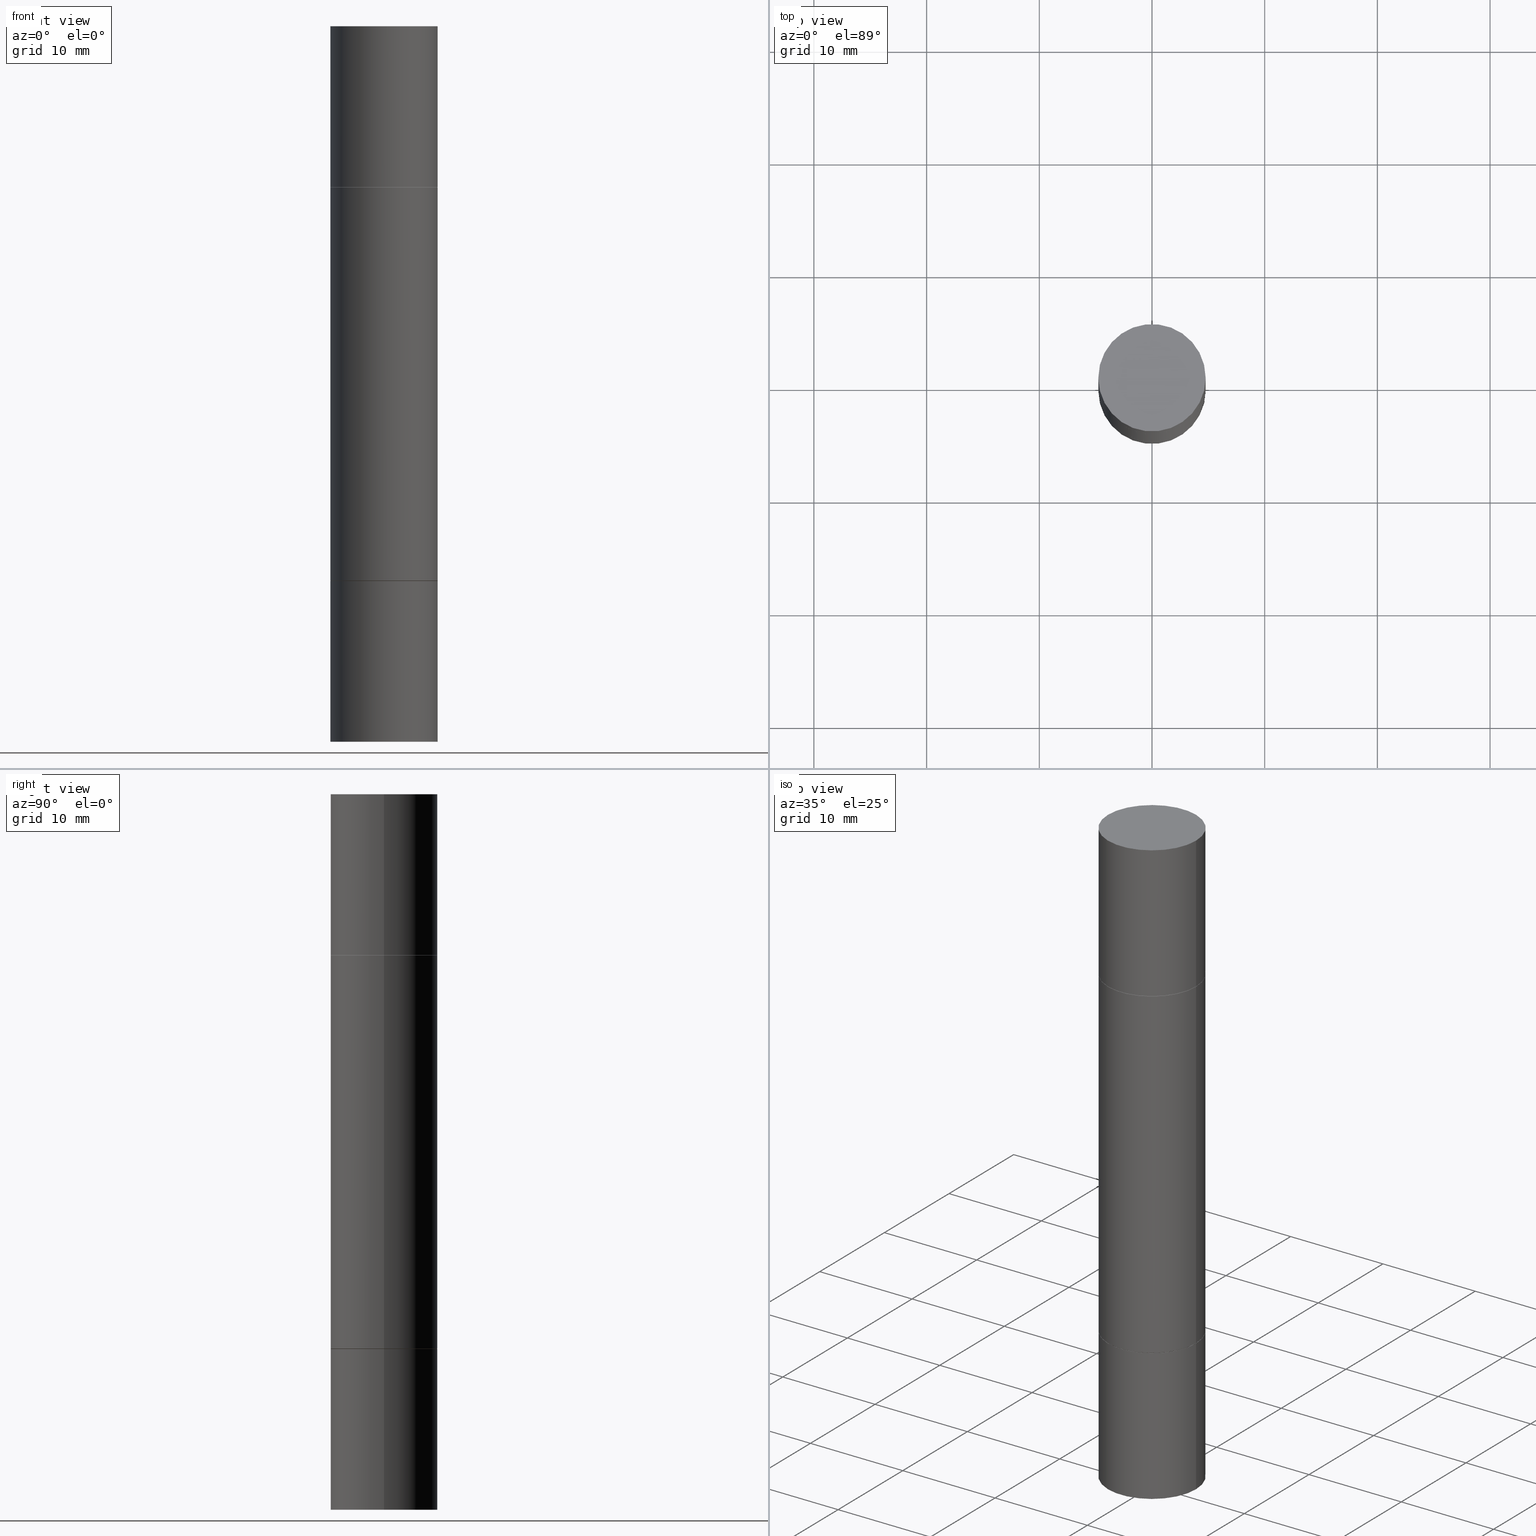
[diagram: canonical four-view strip — front | top / right | iso, engineering-drawing reading convention]
A machine part, canonical four-view strip (front | top / right | iso — engineering-drawing reading convention). The complete STEP part file that produces these views, byte-faithful:
ISO-10303-21;
HEADER;
FILE_DESCRIPTION (( 'STEP AP203' ),
    '1' );
FILE_NAME ('31475.STEP',
    '2024-03-04T15:42:14',
    ( '' ),
    ( '' ),
    'SwSTEP 2.0',
    'SolidWorks 2023',
    '' );
FILE_SCHEMA (( 'CONFIG_CONTROL_DESIGN' ));
ENDSEC;

DATA;
#1 = DIRECTION ( 'NONE',  ( 2.445468806185136597E-29, 3.492890411551752677E-15, 1.000000000000000000 ) ) ;
#2 = ORIENTED_EDGE ( 'NONE', *, *, #459, .T. ) ;
#3 = CC_DESIGN_PERSON_AND_ORGANIZATION_ASSIGNMENT ( #537, #60, ( #123 ) ) ;
#4 = ORIENTED_EDGE ( 'NONE', *, *, #538, .T. ) ;
#5 = CARTESIAN_POINT ( 'NONE',  ( 0.000000000000000000, 0.000000000000000000, 0.000000000000000000 ) ) ;
#6 = PERSON_AND_ORGANIZATION ( #348, #429 ) ;
#7 = CLOSED_SHELL ( 'NONE', ( #55, #275, #638, #465, #609, #74 ) ) ;
#8 = CIRCLE ( 'NONE', #151, 0.1875000000000000278 ) ;
#9 = ORIENTED_EDGE ( 'NONE', *, *, #237, .T. ) ;
#10 = LINE ( 'NONE', #581, #45 ) ;
#11 = DIRECTION ( 'NONE',  ( 1.000000000000000000, -6.982962677686270655E-15, 0.000000000000000000 ) ) ;
#12 = CC_DESIGN_DATE_AND_TIME_ASSIGNMENT ( #133, #611, ( #396 ) ) ;
#13 = DIRECTION ( 'NONE',  ( -2.445468806185136597E-29, 3.491481338843145583E-15, 1.000000000000000000 ) ) ;
#14 = CARTESIAN_POINT ( 'NONE',  ( 4.739318546386794397E-29, -1.961243070406324635E-15, -0.5619999999999996110 ) ) ;
#15 = DIRECTION ( 'NONE',  ( 1.000000000000000000, -6.982962677686266711E-15, 0.000000000000000000 ) ) ;
#16 = AXIS2_PLACEMENT_3D ( 'NONE', #591, #535, #120 ) ;
#17 = DIRECTION ( 'NONE',  ( -2.445468806185136597E-29, -3.492890411551752677E-15, -1.000000000000000000 ) ) ;
#18 = CIRCLE ( 'NONE', #103, 0.1875000000000000278 ) ;
#19 = DIRECTION ( 'NONE',  ( -2.438088387897959769E-29, -3.492890411551753071E-15, -1.000000000000000000 ) ) ;
#20 = CALENDAR_DATE ( 2024, 4, 3 ) ;
#21 = LINE ( 'NONE', #281, #240 ) ;
#22 = DIRECTION ( 'NONE',  ( -1.000000000000000000, 6.982962677686265922E-15, -4.876176775795935793E-29 ) ) ;
#23 = SHAPE_DEFINITION_REPRESENTATION ( #565, #579 ) ;
#24 = CARTESIAN_POINT ( 'NONE',  ( 4.739318546386794397E-29, -1.961243070406324635E-15, -0.5619999999999996110 ) ) ;
#25 = DIRECTION ( 'NONE',  ( 1.000000000000000000, -6.982962677686265922E-15, 0.000000000000000000 ) ) ;
#26 = AXIS2_PLACEMENT_3D ( 'NONE', #385, #32, #340 ) ;
#27 = LOCAL_TIME ( 10, 42, 14.00000000000000000, #422 ) ;
#28 = DIRECTION ( 'NONE',  ( 1.000000000000000000, -6.982962677686266711E-15, 0.000000000000000000 ) ) ;
#29 = CARTESIAN_POINT ( 'NONE',  ( 4.739318546386794397E-29, -6.766490834678016045E-15, -1.937999999999999945 ) ) ;
#30 = DIRECTION ( 'NONE',  ( -2.445468806185136597E-29, -3.492890411551752677E-15, -1.000000000000000000 ) ) ;
#31 = ORIENTED_EDGE ( 'NONE', *, *, #219, .T. ) ;
#32 = DIRECTION ( 'NONE',  ( -2.445468806185136597E-29, 3.491481338843145583E-15, 1.000000000000000000 ) ) ;
#33 = CC_DESIGN_PERSON_AND_ORGANIZATION_ASSIGNMENT ( #542, #69, ( #552 ) ) ;
#34 = DIRECTION ( 'NONE',  ( 1.000000000000000000, -6.982962677686269077E-15, 0.000000000000000000 ) ) ;
#35 = AXIS2_PLACEMENT_3D ( 'NONE', #341, #607, #246 ) ;
#36 = DIRECTION ( 'NONE',  ( -2.445468806185136597E-29, 3.491481338843145583E-15, 1.000000000000000000 ) ) ;
#37 = VERTEX_POINT ( 'NONE', #568 ) ;
#38 = EDGE_LOOP ( 'NONE', ( #214, #156, #374, #631 ) ) ;
#39 = EDGE_CURVE ( 'NONE', #613, #195, #67, .T. ) ;
#40 = CARTESIAN_POINT ( 'NONE',  ( 6.113672015462842613E-29, 1.761340885760521790E-18, 5.463695987328526437E-16 ) ) ;
#41 = LINE ( 'NONE', #367, #250 ) ;
#42 = ORIENTED_EDGE ( 'NONE', *, *, #573, .T. ) ;
#43 = AXIS2_PLACEMENT_3D ( 'NONE', #185, #487, #602 ) ;
#44 = LINE ( 'NONE', #402, #575 ) ;
#45 = VECTOR ( 'NONE', #119, 39.37007874015748143 ) ;
#46 = AXIS2_PLACEMENT_3D ( 'NONE', #471, #635, #317 ) ;
#47 = ORIENTED_EDGE ( 'NONE', *, *, #647, .T. ) ;
#48 = EDGE_LOOP ( 'NONE', ( #168, #175, #499, #336 ) ) ;
#49 = CYLINDRICAL_SURFACE ( 'NONE', #530, 0.1875000000000000278 ) ;
#50 = ADVANCED_FACE ( 'NONE', ( #192 ), #294, .T. ) ;
#51 = DIRECTION ( 'NONE',  ( 0.000000000000000000, 1.000000000000000000, -3.492185875197449524E-15 ) ) ;
#52 = DIRECTION ( 'NONE',  ( 1.000000000000000000, -6.982962677686266711E-15, 0.000000000000000000 ) ) ;
#53 = AXIS2_PLACEMENT_3D ( 'NONE', #622, #559, #88 ) ;
#54 = DIRECTION ( 'NONE',  ( 2.445468806185136597E-29, 3.492890411551752677E-15, 1.000000000000000000 ) ) ;
#55 = ADVANCED_FACE ( 'NONE', ( #184 ), #599, .T. ) ;
#56 = CARTESIAN_POINT ( 'NONE',  ( 0.000000000000000000, -8.730464687993621641E-15, -2.499999999999999556 ) ) ;
#57 = ORIENTED_EDGE ( 'NONE', *, *, #379, .F. ) ;
#58 = ADVANCED_FACE ( 'NONE', ( #386 ), #548, .F. ) ;
#59 = DIRECTION ( 'NONE',  ( -0.7071067811865353603, 2.381258160591140710E-15, -0.7071067811865595631 ) ) ;
#60 = PERSON_AND_ORGANIZATION_ROLE ( 'creator' ) ;
#61 = ORIENTED_EDGE ( 'NONE', *, *, #182, .F. ) ;
#62 = CARTESIAN_POINT ( 'NONE',  ( 4.736873077580609355E-29, -1.964735960817877172E-15, -0.5629999999999997229 ) ) ;
#63 = FACE_OUTER_BOUND ( 'NONE', #616, .T. ) ;
#64 = DATE_TIME_ROLE ( 'creation_date' ) ;
#65 = DIRECTION ( 'NONE',  ( 1.000000000000000000, -6.982962677686269077E-15, 0.000000000000000000 ) ) ;
#66 = EDGE_CURVE ( 'NONE', #126, #522, #407, .T. ) ;
#67 = CIRCLE ( 'NONE', #53, 0.1864999999999999714 ) ;
#68 = VECTOR ( 'NONE', #612, 39.37007874015748854 ) ;
#69 = PERSON_AND_ORGANIZATION_ROLE ( 'creator' ) ;
#70 = CARTESIAN_POINT ( 'NONE',  ( 6.113672015462842613E-29, 1.761340885760521790E-18, 5.463695987328526437E-16 ) ) ;
#71 = EDGE_LOOP ( 'NONE', ( #9, #457 ) ) ;
#72 = ADVANCED_FACE ( 'NONE', ( #243 ), #136, .T. ) ;
#73 = LINE ( 'NONE', #286, #670 ) ;
#74 = ADVANCED_FACE ( 'NONE', ( #556 ), #290, .T. ) ;
#75 = CARTESIAN_POINT ( 'NONE',  ( 4.736873077580609355E-29, -1.964735960817877172E-15, -0.5629999999999997229 ) ) ;
#76 = CARTESIAN_POINT ( 'NONE',  ( 0.1875000000000000278, -3.270548572472500038E-15, -0.5619999999999996110 ) ) ;
#77 = CLOSED_SHELL ( 'NONE', ( #157, #112, #641, #101 ) ) ;
#78 = CARTESIAN_POINT ( 'NONE',  ( 0.000000000000000000, -8.730464687993621641E-15, -2.499999999999999556 ) ) ;
#79 = AXIS2_PLACEMENT_3D ( 'NONE', #562, #163, #359 ) ;
#80 = ADVANCED_FACE ( 'NONE', ( #63 ), #469, .T. ) ;
#81 = FACE_OUTER_BOUND ( 'NONE', #160, .T. ) ;
#82 = DIRECTION ( 'NONE',  ( 1.000000000000000000, -6.982962677686266711E-15, 0.000000000000000000 ) ) ;
#83 = ADVANCED_FACE ( 'NONE', ( #273 ), #476, .F. ) ;
#84 = ORIENTED_EDGE ( 'NONE', *, *, #66, .F. ) ;
#85 = PERSON_AND_ORGANIZATION ( #348, #429 ) ;
#86 = CARTESIAN_POINT ( 'NONE',  ( -0.1875000000000000278, 3.066025098218802702E-16, -0.5619999999999996110 ) ) ;
#87 = EDGE_CURVE ( 'NONE', #225, #400, #593, .T. ) ;
#88 = DIRECTION ( 'NONE',  ( 1.000000000000000000, -6.982962677686269077E-15, 0.000000000000000000 ) ) ;
#89 = EDGE_LOOP ( 'NONE', ( #84, #324, #526, #61 ) ) ;
#90 = DIRECTION ( 'NONE',  ( -2.445468806185136597E-29, -3.492890411551752677E-15, -1.000000000000000000 ) ) ;
#91 = EDGE_CURVE ( 'NONE', #473, #425, #394, .T. ) ;
#92 = DIRECTION ( 'NONE',  ( -1.000000000000000000, 6.982962677686265922E-15, -9.839502134516470631E-33 ) ) ;
#93 = AXIS2_PLACEMENT_3D ( 'NONE', #78, #30, #665 ) ;
#94 = AXIS2_PLACEMENT_3D ( 'NONE', #137, #338, #546 ) ;
#95 = FACE_OUTER_BOUND ( 'NONE', #171, .T. ) ;
#96 = ORIENTED_EDGE ( 'NONE', *, *, #650, .F. ) ;
#97 = DIRECTION ( 'NONE',  ( -2.445468806185136877E-29, -3.492890411551753071E-15, -1.000000000000000000 ) ) ;
#98 = ORIENTED_EDGE ( 'NONE', *, *, #459, .F. ) ;
#99 = PLANE ( 'NONE',  #223 ) ;
#100 = ORIENTED_EDGE ( 'NONE', *, *, #431, .F. ) ;
#101 = ADVANCED_FACE ( 'NONE', ( #81 ), #292, .T. ) ;
#102 = CARTESIAN_POINT ( 'NONE',  ( 0.1875000000000000278, -3.274041462884052574E-15, -0.5629999999999997229 ) ) ;
#103 = AXIS2_PLACEMENT_3D ( 'NONE', #40, #1, #628 ) ;
#104 = APPROVAL_PERSON_ORGANIZATION ( #589, #264, #642 ) ;
#105 = ORIENTED_EDGE ( 'NONE', *, *, #305, .T. ) ;
#106 = CARTESIAN_POINT ( 'NONE',  ( 0.000000000000000000, -8.730464687993621641E-15, -2.499999999999999556 ) ) ;
#107 = DIRECTION ( 'NONE',  ( -2.445468806185136877E-29, -3.492890411551753071E-15, -1.000000000000000000 ) ) ;
#108 = ORIENTED_EDGE ( 'NONE', *, *, #437, .F. ) ;
#109 = DIRECTION ( 'NONE',  ( -2.445468806185136597E-29, -3.492890411551752677E-15, -1.000000000000000000 ) ) ;
#110 = LINE ( 'NONE', #276, #150 ) ;
#111 = CYLINDRICAL_SURFACE ( 'NONE', #574, 0.1874999999999999167 ) ;
#112 = ADVANCED_FACE ( 'NONE', ( #307 ), #504, .T. ) ;
#113 = VERTEX_POINT ( 'NONE', #303 ) ;
#114 = CIRCLE ( 'NONE', #288, 0.1875000000000000278 ) ;
#115 = CARTESIAN_POINT ( 'NONE',  ( -0.1864999999999999714, -6.800763900288241472E-16, -0.5619999999999996110 ) ) ;
#116 = CIRCLE ( 'NONE', #452, 0.1875000000000000278 ) ;
#117 = DATE_AND_TIME ( #124, #27 ) ;
#118 = ORIENTED_EDGE ( 'NONE', *, *, #297, .F. ) ;
#119 = DIRECTION ( 'NONE',  ( -2.445468806185136877E-29, -3.492890411551753071E-15, -1.000000000000000000 ) ) ;
#120 = DIRECTION ( 'NONE',  ( 1.000000000000000000, -6.982962677686269077E-15, 0.000000000000000000 ) ) ;
#121 = EDGE_LOOP ( 'NONE', ( #147, #502, #410, #399 ) ) ;
#122 = DIRECTION ( 'NONE',  ( -2.445468806185136877E-29, 3.491481338843145188E-15, 1.000000000000000000 ) ) ;
#123 = PRODUCT_DEFINITION ( 'UNKNOWN', '', #552, #238 ) ;
#124 = CALENDAR_DATE ( 2024, 4, 3 ) ;
#125 = CYLINDRICAL_SURFACE ( 'NONE', #130, 0.1875000000000000278 ) ;
#126 = VERTEX_POINT ( 'NONE', #405 ) ;
#127 = DATE_AND_TIME ( #220, #482 ) ;
#128 = DIRECTION ( 'NONE',  ( 1.000000000000000000, -6.982962677686266711E-15, 0.000000000000000000 ) ) ;
#129 = AXIS2_PLACEMENT_3D ( 'NONE', #497, #295, #543 ) ;
#130 = AXIS2_PLACEMENT_3D ( 'NONE', #657, #483, #177 ) ;
#131 = APPROVAL_PERSON_ORGANIZATION ( #332, #139, #481 ) ;
#132 = ORIENTED_EDGE ( 'NONE', *, *, #514, .F. ) ;
#133 = DATE_AND_TIME ( #500, #509 ) ;
#134 = VERTEX_POINT ( 'NONE', #421 ) ;
#135 = ADVANCED_FACE ( 'NONE', ( #582 ), #111, .T. ) ;
#136 = CYLINDRICAL_SURFACE ( 'NONE', #624, 0.1874999999999999167 ) ;
#137 = CARTESIAN_POINT ( 'NONE',  ( 1.309305502066222340E-15, 0.1874999999999932554, -1.938000000000000389 ) ) ;
#138 = CARTESIAN_POINT ( 'NONE',  ( -0.1875000000000000278, 3.066025098218802702E-16, 5.463695987328561936E-16 ) ) ;
#139 = APPROVAL ( #279, 'UNSPECIFIED' ) ;
#140 = CARTESIAN_POINT ( 'NONE',  ( 1.309305502066236145E-15, 0.1874999999999999722, 0.000000000000000000 ) ) ;
#141 = ORIENTED_EDGE ( 'NONE', *, *, #578, .F. ) ;
#142 = DIRECTION ( 'NONE',  ( -2.445468806185136597E-29, -3.492890411551752677E-15, -1.000000000000000000 ) ) ;
#143 = AXIS2_PLACEMENT_3D ( 'NONE', #488, #446, #25 ) ;
#144 = CC_DESIGN_APPROVAL ( #139, ( #552 ) ) ;
#145 = DIRECTION ( 'NONE',  ( -0.7071067811865353603, 2.381258160591140710E-15, -0.7071067811865595631 ) ) ;
#146 = FACE_OUTER_BOUND ( 'NONE', #656, .T. ) ;
#147 = ORIENTED_EDGE ( 'NONE', *, *, #247, .F. ) ;
#148 = CARTESIAN_POINT ( 'NONE',  ( -0.1875000000000000278, -7.444121313411457895E-15, -2.499999999999999556 ) ) ;
#149 = ORIENTED_EDGE ( 'NONE', *, *, #211, .T. ) ;
#150 = VECTOR ( 'NONE', #59, 39.37007874015748854 ) ;
#151 = AXIS2_PLACEMENT_3D ( 'NONE', #549, #293, #287 ) ;
#152 = FACE_OUTER_BOUND ( 'NONE', #173, .T. ) ;
#153 = EDGE_CURVE ( 'NONE', #217, #451, #540, .T. ) ;
#154 = CARTESIAN_POINT ( 'NONE',  ( 4.739318546386794397E-29, -1.961243070406324635E-15, -0.5619999999999996110 ) ) ;
#155 = ORIENTED_EDGE ( 'NONE', *, *, #391, .T. ) ;
#156 = ORIENTED_EDGE ( 'NONE', *, *, #495, .T. ) ;
#157 = ADVANCED_FACE ( 'NONE', ( #619 ), #308, .T. ) ;
#158 = EDGE_CURVE ( 'NONE', #253, #134, #329, .T. ) ;
#159 = CARTESIAN_POINT ( 'NONE',  ( 0.1875000000000000278, -1.309305502066175008E-15, 9.142831454617381013E-30 ) ) ;
#160 = EDGE_LOOP ( 'NONE', ( #318, #118, #47, #343 ) ) ;
#161 = ADVANCED_FACE ( 'NONE', ( #231 ), #335, .F. ) ;
#162 = VECTOR ( 'NONE', #122, 39.37007874015748143 ) ;
#163 = DIRECTION ( 'NONE',  ( -2.445468806185136597E-29, 3.491481338843145583E-15, 1.000000000000000000 ) ) ;
#164 = VECTOR ( 'NONE', #145, 39.37007874015748854 ) ;
#165 = APPROVAL_PERSON_ORGANIZATION ( #85, #232, #388 ) ;
#166 = ORIENTED_EDGE ( 'NONE', *, *, #345, .T. ) ;
#167 = DIRECTION ( 'NONE',  ( -2.445468806185136597E-29, 3.491481338843145583E-15, 1.000000000000000000 ) ) ;
#168 = ORIENTED_EDGE ( 'NONE', *, *, #219, .F. ) ;
#169 = EDGE_CURVE ( 'NONE', #629, #134, #114, .T. ) ;
#170 = CARTESIAN_POINT ( 'NONE',  ( 6.113672015462842613E-29, -8.728703347107864943E-15, -2.500000000000000000 ) ) ;
#171 = EDGE_LOOP ( 'NONE', ( #583, #645 ) ) ;
#172 = CARTESIAN_POINT ( 'NONE',  ( 6.113672015462842613E-29, -8.728703347107864943E-15, -2.500000000000000000 ) ) ;
#173 = EDGE_LOOP ( 'NONE', ( #413, #668, #458, #608 ) ) ;
#174 = DIRECTION ( 'NONE',  ( 1.000000000000000000, 0.000000000000000000, 0.000000000000000000 ) ) ;
#175 = ORIENTED_EDGE ( 'NONE', *, *, #379, .T. ) ;
#176 = CIRCLE ( 'NONE', #541, 0.1864999999999999714 ) ;
#177 = DIRECTION ( 'NONE',  ( 1.000000000000000000, -6.982962677686265922E-15, 4.876176775795935793E-29 ) ) ;
#178 = VECTOR ( 'NONE', #577, 39.37007874015748143 ) ;
#179 = CARTESIAN_POINT ( 'NONE',  ( -0.1875000000000000278, 1.332267629550188046E-15, -9.223003294227947991E-30 ) ) ;
#180 = CARTESIAN_POINT ( 'NONE',  ( 0.1874999999999999167, -1.003977019005979665E-14, -2.499999999999999556 ) ) ;
#181 = APPROVAL_DATE_TIME ( #653, #139 ) ;
#182 = EDGE_CURVE ( 'NONE', #522, #451, #643, .T. ) ;
#183 = CARTESIAN_POINT ( 'NONE',  ( 4.739318546386794397E-29, -1.961243070406324635E-15, -0.5619999999999996110 ) ) ;
#184 = FACE_OUTER_BOUND ( 'NONE', #89, .T. ) ;
#185 = CARTESIAN_POINT ( 'NONE',  ( 1.309305502066222340E-15, 0.1874999999999980294, -0.5620000000000004992 ) ) ;
#186 = DIRECTION ( 'NONE',  ( -2.445468806185136597E-29, -3.492890411551752677E-15, -1.000000000000000000 ) ) ;
#187 = CIRCLE ( 'NONE', #384, 0.1875000000000000278 ) ;
#188 = CALENDAR_DATE ( 2024, 4, 3 ) ;
#189 = EDGE_LOOP ( 'NONE', ( #141, #4, #210, #357 ) ) ;
#190 = DIRECTION ( 'NONE',  ( -2.445468806185136597E-29, -3.492890411551752677E-15, -1.000000000000000000 ) ) ;
#191 = EDGE_CURVE ( 'NONE', #225, #677, #658, .T. ) ;
#192 = FACE_OUTER_BOUND ( 'NONE', #572, .T. ) ;
#193 = APPROVAL_DATE_TIME ( #435, #232 ) ;
#194 = DIRECTION ( 'NONE',  ( -1.000000000000000000, 6.982962677686265922E-15, -9.839502134516470631E-33 ) ) ;
#195 = VERTEX_POINT ( 'NONE', #236 ) ;
#196 = LINE ( 'NONE', #296, #491 ) ;
#197 = AXIS2_PLACEMENT_3D ( 'NONE', #319, #284, #531 ) ;
#198 = VECTOR ( 'NONE', #97, 39.37007874015748143 ) ;
#199 = EDGE_CURVE ( 'NONE', #204, #629, #110, .T. ) ;
#200 = CARTESIAN_POINT ( 'NONE',  ( 3.056836007731420185E-29, -4.364351673553931682E-15, -1.249999999999999778 ) ) ;
#201 = CARTESIAN_POINT ( 'NONE',  ( 4.739318546386794397E-29, -1.961243070406324635E-15, -0.5619999999999996110 ) ) ;
#202 = LINE ( 'NONE', #159, #355 ) ;
#203 = DIRECTION ( 'NONE',  ( 1.000000000000000000, -6.982962677686266711E-15, 0.000000000000000000 ) ) ;
#204 = VERTEX_POINT ( 'NONE', #115 ) ;
#205 = ORIENTED_EDGE ( 'NONE', *, *, #401, .F. ) ;
#206 = AXIS2_PLACEMENT_3D ( 'NONE', #201, #351, #603 ) ;
#207 = CONICAL_SURFACE ( 'NONE', #634, 0.1864999999999999714, 0.7853981633974311816 ) ;
#208 = AXIS2_PLACEMENT_3D ( 'NONE', #644, #224, #174 ) ;
#209 = DIRECTION ( 'NONE',  ( -2.445468806185136877E-29, -3.492890411551753071E-15, -1.000000000000000000 ) ) ;
#210 = ORIENTED_EDGE ( 'NONE', *, *, #615, .T. ) ;
#211 = EDGE_CURVE ( 'NONE', #533, #522, #21, .T. ) ;
#212 = DIRECTION ( 'NONE',  ( 1.000000000000000000, -6.982962677686265922E-15, 0.000000000000000000 ) ) ;
#213 = ORIENTED_EDGE ( 'NONE', *, *, #437, .T. ) ;
#214 = ORIENTED_EDGE ( 'NONE', *, *, #503, .F. ) ;
#215 = CARTESIAN_POINT ( 'NONE',  ( 4.739318546386794397E-29, -6.766490834678016045E-15, -1.937999999999999945 ) ) ;
#216 = VERTEX_POINT ( 'NONE', #595 ) ;
#217 = VERTEX_POINT ( 'NONE', #590 ) ;
#218 = EDGE_LOOP ( 'NONE', ( #358, #404, #447, #673 ) ) ;
#219 = EDGE_CURVE ( 'NONE', #569, #533, #489, .T. ) ;
#220 = CALENDAR_DATE ( 2024, 4, 3 ) ;
#221 = AXIS2_PLACEMENT_3D ( 'NONE', #326, #226, #472 ) ;
#222 = EDGE_LOOP ( 'NONE', ( #96, #640 ) ) ;
#223 = AXIS2_PLACEMENT_3D ( 'NONE', #415, #310, #51 ) ;
#224 = DIRECTION ( 'NONE',  ( 0.000000000000000000, 0.000000000000000000, 1.000000000000000000 ) ) ;
#225 = VERTEX_POINT ( 'NONE', #436 ) ;
#226 = DIRECTION ( 'NONE',  ( 2.445468806185136597E-29, 3.492890411551752677E-15, 1.000000000000000000 ) ) ;
#227 = EDGE_LOOP ( 'NONE', ( #314, #432, #365, #155 ) ) ;
#228 = MECHANICAL_CONTEXT ( 'NONE', #554, 'mechanical' ) ;
#229 = DIRECTION ( 'NONE',  ( 1.000000000000000000, -6.982962677686269077E-15, 0.000000000000000000 ) ) ;
#230 = ORIENTED_EDGE ( 'NONE', *, *, #87, .T. ) ;
#231 = FACE_OUTER_BOUND ( 'NONE', #222, .T. ) ;
#232 = APPROVAL ( #291, 'UNSPECIFIED' ) ;
#233 = PERSON_AND_ORGANIZATION_ROLE ( 'design_owner' ) ;
#234 = FACE_OUTER_BOUND ( 'NONE', #680, .T. ) ;
#235 = ORIENTED_EDGE ( 'NONE', *, *, #615, .F. ) ;
#236 = CARTESIAN_POINT ( 'NONE',  ( 0.1864999999999999714, -8.068813374066505039E-15, -1.937999999999999945 ) ) ;
#237 = EDGE_CURVE ( 'NONE', #253, #204, #601, .T. ) ;
#238 = DESIGN_CONTEXT ( 'detailed design', #409, 'design' ) ;
#239 = LINE ( 'NONE', #614, #164 ) ;
#240 = VECTOR ( 'NONE', #378, 39.37007874015748854 ) ;
#241 = CONICAL_SURFACE ( 'NONE', #289, 0.1864999999999999714, 0.7853981633974311816 ) ;
#242 = AXIS2_PLACEMENT_3D ( 'NONE', #170, #167, #52 ) ;
#243 = FACE_OUTER_BOUND ( 'NONE', #363, .T. ) ;
#244 = DIRECTION ( 'NONE',  ( 1.000000000000000000, -6.982962677686266711E-15, 0.000000000000000000 ) ) ;
#245 = EDGE_LOOP ( 'NONE', ( #561, #426 ) ) ;
#246 = DIRECTION ( 'NONE',  ( 1.000000000000000000, -6.982962677686266711E-15, 0.000000000000000000 ) ) ;
#247 = EDGE_CURVE ( 'NONE', #204, #253, #364, .T. ) ;
#248 = DIRECTION ( 'NONE',  ( -0.7071067811865353603, 7.493145998870309984E-15, 0.7071067811865595631 ) ) ;
#249 = AXIS2_PLACEMENT_3D ( 'NONE', #172, #13, #128 ) ;
#250 = VECTOR ( 'NONE', #107, 39.37007874015748143 ) ;
#251 = AXIS2_PLACEMENT_3D ( 'NONE', #676, #406, #313 ) ;
#252 = FACE_OUTER_BOUND ( 'NONE', #366, .T. ) ;
#253 = VERTEX_POINT ( 'NONE', #381 ) ;
#254 = EDGE_LOOP ( 'NONE', ( #105, #411 ) ) ;
#255 = CARTESIAN_POINT ( 'NONE',  ( -0.1875000000000000278, -6.783925862357143136E-16, -0.5629999999999997229 ) ) ;
#256 = DIRECTION ( 'NONE',  ( 2.445468806185136597E-29, 3.492890411551752677E-15, 1.000000000000000000 ) ) ;
#257 = EDGE_CURVE ( 'NONE', #522, #126, #417, .T. ) ;
#258 = AXIS2_PLACEMENT_3D ( 'NONE', #445, #282, #22 ) ;
#259 = AXIS2_PLACEMENT_3D ( 'NONE', #521, #361, #571 ) ;
#260 = FACE_OUTER_BOUND ( 'NONE', #362, .T. ) ;
#261 = ORIENTED_EDGE ( 'NONE', *, *, #391, .F. ) ;
#262 = VERTEX_POINT ( 'NONE', #331 ) ;
#263 = CARTESIAN_POINT ( 'NONE',  ( 0.1875000000000000278, -8.072304855405348046E-15, -1.936999999999999833 ) ) ;
#264 = APPROVAL ( #380, 'UNSPECIFIED' ) ;
#265 = ORIENTED_EDGE ( 'NONE', *, *, #514, .T. ) ;
#266 = CARTESIAN_POINT ( 'NONE',  ( 0.1864999999999999714, -3.263565609794813629E-15, -0.5619999999999996110 ) ) ;
#267 = EDGE_LOOP ( 'NONE', ( #213, #31 ) ) ;
#268 = AXIS2_PLACEMENT_3D ( 'NONE', #618, #353, #92 ) ;
#269 =( NAMED_UNIT ( * ) PLANE_ANGLE_UNIT ( ) SI_UNIT ( $, .RADIAN. ) );
#270 = AXIS2_PLACEMENT_3D ( 'NONE', #215, #570, #203 ) ;
#271 = DIRECTION ( 'NONE',  ( -0.000000000000000000, -3.492185875197449130E-15, -1.000000000000000000 ) ) ;
#272 = DIRECTION ( 'NONE',  ( 2.445468806185136597E-29, 3.492890411551752677E-15, 1.000000000000000000 ) ) ;
#273 = FACE_OUTER_BOUND ( 'NONE', #71, .T. ) ;
#274 = MANIFOLD_SOLID_BREP ( 'Mirror1[3]', #461 ) ;
#275 = ADVANCED_FACE ( 'NONE', ( #598 ), #625, .T. ) ;
#276 = CARTESIAN_POINT ( 'NONE',  ( -0.1864999999999999714, -6.817601938219341781E-16, -0.5619999999999996110 ) ) ;
#277 = MANIFOLD_SOLID_BREP ( 'Mirror1[4]', #77 ) ;
#278 = CARTESIAN_POINT ( 'NONE',  ( 4.739318546386794397E-29, -1.961243070406324635E-15, -0.5619999999999996110 ) ) ;
#279 = APPROVAL_STATUS ( 'not_yet_approved' ) ;
#280 = AXIS2_PLACEMENT_3D ( 'NONE', #106, #17, #567 ) ;
#281 = CARTESIAN_POINT ( 'NONE',  ( 0.1864999999999999714, -3.263565609794813629E-15, -0.5619999999999996110 ) ) ;
#282 = DIRECTION ( 'NONE',  ( 2.438088387897960049E-29, -3.491481338843145188E-15, -1.000000000000000000 ) ) ;
#283 =( LENGTH_UNIT ( ) NAMED_UNIT ( * ) SI_UNIT ( $, .METRE. ) );
#284 = DIRECTION ( 'NONE',  ( -2.438088387897960049E-29, 3.491481338843145188E-15, 1.000000000000000000 ) ) ;
#285 = DIRECTION ( 'NONE',  ( -2.445468806185136597E-29, -3.492890411551752677E-15, -1.000000000000000000 ) ) ;
#286 = CARTESIAN_POINT ( 'NONE',  ( -0.1875000000000000278, -7.444121313411457895E-15, -2.499999999999999556 ) ) ;
#287 = DIRECTION ( 'NONE',  ( 1.000000000000000000, -6.982962677686266711E-15, 0.000000000000000000 ) ) ;
#288 = AXIS2_PLACEMENT_3D ( 'NONE', #62, #527, #646 ) ;
#289 = AXIS2_PLACEMENT_3D ( 'NONE', #678, #316, #354 ) ;
#290 = CYLINDRICAL_SURFACE ( 'NONE', #93, 0.1874999999999999167 ) ;
#291 = APPROVAL_STATUS ( 'not_yet_approved' ) ;
#292 = CYLINDRICAL_SURFACE ( 'NONE', #129, 0.1875000000000000278 ) ;
#293 = DIRECTION ( 'NONE',  ( 2.445468806185136597E-29, 3.492890411551752677E-15, 1.000000000000000000 ) ) ;
#294 = PLANE ( 'NONE',  #258 ) ;
#295 = DIRECTION ( 'NONE',  ( -2.445468806185136597E-29, -3.492890411551752677E-15, -1.000000000000000000 ) ) ;
#296 = CARTESIAN_POINT ( 'NONE',  ( -0.1864999999999999714, -5.441328632485429205E-15, -1.937999999999999945 ) ) ;
#297 = EDGE_CURVE ( 'NONE', #37, #555, #116, .T. ) ;
#298 = LINE ( 'NONE', #455, #344 ) ;
#299 = ORIENTED_EDGE ( 'NONE', *, *, #675, .T. ) ;
#300 = AXIS2_PLACEMENT_3D ( 'NONE', #75, #492, #28 ) ;
#301 = AXIS2_PLACEMENT_3D ( 'NONE', #183, #272, #372 ) ;
#302 = ORIENTED_EDGE ( 'NONE', *, *, #584, .F. ) ;
#303 = CARTESIAN_POINT ( 'NONE',  ( -0.1874999999999999722, -3.078008298971767937E-15, -1.936999999999999833 ) ) ;
#304 = DIRECTION ( 'NONE',  ( 1.000000000000000000, -6.982962677686266711E-15, 0.000000000000000000 ) ) ;
#305 = EDGE_CURVE ( 'NONE', #451, #217, #334, .T. ) ;
#306 = DIRECTION ( 'NONE',  ( -2.445468806185136877E-29, -3.492890411551753071E-15, -1.000000000000000000 ) ) ;
#307 = FACE_OUTER_BOUND ( 'NONE', #245, .T. ) ;
#308 = CYLINDRICAL_SURFACE ( 'NONE', #280, 0.1875000000000000278 ) ;
#309 = ORIENTED_EDGE ( 'NONE', *, *, #551, .F. ) ;
#310 = DIRECTION ( 'NONE',  ( 0.000000000000000000, 3.492185875197449524E-15, 1.000000000000000000 ) ) ;
#311 = CONICAL_SURFACE ( 'NONE', #480, 0.1864999999999999714, 0.7853981633974311816 ) ;
#312 = CC_DESIGN_APPROVAL ( #264, ( #123 ) ) ;
#313 = DIRECTION ( 'NONE',  ( 1.000000000000000000, -6.982962677686269077E-15, 0.000000000000000000 ) ) ;
#314 = ORIENTED_EDGE ( 'NONE', *, *, #199, .F. ) ;
#315 = ADVANCED_FACE ( 'NONE', ( #234 ), #125, .T. ) ;
#316 = DIRECTION ( 'NONE',  ( -2.445468806185136597E-29, -3.492890411551752677E-15, -1.000000000000000000 ) ) ;
#317 = DIRECTION ( 'NONE',  ( 1.000000000000000000, -6.982962677686266711E-15, 0.000000000000000000 ) ) ;
#318 = ORIENTED_EDGE ( 'NONE', *, *, #495, .F. ) ;
#319 = CARTESIAN_POINT ( 'NONE',  ( 4.739318546386794397E-29, -6.766490834678016045E-15, -1.937999999999999945 ) ) ;
#320 = CARTESIAN_POINT ( 'NONE',  ( 0.000000000000000000, -8.730464687993621641E-15, -2.499999999999999556 ) ) ;
#321 = AXIS2_PLACEMENT_3D ( 'NONE', #14, #19, #536 ) ;
#322 = APPLICATION_PROTOCOL_DEFINITION ( 'international standard', 'config_control_design', 1994, #554 ) ;
#323 = CIRCLE ( 'NONE', #659, 0.1875000000000000278 ) ;
#324 = ORIENTED_EDGE ( 'NONE', *, *, #551, .T. ) ;
#325 = LOCAL_TIME ( 10, 42, 14.00000000000000000, #666 ) ;
#326 = CARTESIAN_POINT ( 'NONE',  ( 4.739318546386794397E-29, -1.961243070406324635E-15, -0.5619999999999996110 ) ) ;
#327 =( CONVERSION_BASED_UNIT ( 'INCH', #477 ) LENGTH_UNIT ( ) NAMED_UNIT ( #448 ) );
#328 = ADVANCED_FACE ( 'NONE', ( #434 ), #207, .T. ) ;
#329 = LINE ( 'NONE', #539, #416 ) ;
#330 = DIRECTION ( 'NONE',  ( 2.445468806185136597E-29, 3.492890411551752677E-15, 1.000000000000000000 ) ) ;
#331 = CARTESIAN_POINT ( 'NONE',  ( 0.1875000000000000278, -1.307544161180414563E-15, 5.463695987328526437E-16 ) ) ;
#332 = PERSON_AND_ORGANIZATION ( #348, #429 ) ;
#333 = AXIS2_PLACEMENT_3D ( 'NONE', #278, #330, #389 ) ;
#334 = CIRCLE ( 'NONE', #438, 0.1874999999999999167 ) ;
#335 = PLANE ( 'NONE',  #197 ) ;
#336 = ORIENTED_EDGE ( 'NONE', *, *, #211, .F. ) ;
#337 = PERSON_AND_ORGANIZATION_ROLE ( 'design_supplier' ) ;
#338 = DIRECTION ( 'NONE',  ( 2.438088387897960049E-29, -3.491481338843145188E-15, -1.000000000000000000 ) ) ;
#339 = EDGE_CURVE ( 'NONE', #262, #371, #10, .T. ) ;
#340 = DIRECTION ( 'NONE',  ( 1.000000000000000000, -6.982962677686269077E-15, 0.000000000000000000 ) ) ;
#341 = CARTESIAN_POINT ( 'NONE',  ( 4.736873077580609355E-29, -6.762999353339172249E-15, -1.936999999999999833 ) ) ;
#342 = AXIS2_PLACEMENT_3D ( 'NONE', #486, #285, #663 ) ;
#343 = ORIENTED_EDGE ( 'NONE', *, *, #524, .T. ) ;
#344 = VECTOR ( 'NONE', #505, 39.37007874015748143 ) ;
#345 = EDGE_CURVE ( 'NONE', #113, #520, #648, .T. ) ;
#346 = LINE ( 'NONE', #606, #68 ) ;
#347 = EDGE_CURVE ( 'NONE', #262, #420, #493, .T. ) ;
#348 = PERSON ( 'UNSPECIFIED', 'UNSPECIFIED', 'UNSPECIFIED', ('UNSPECIFIED'), ('UNSPECIFIED'), ('UNSPECIFIED') ) ;
#349 = ORIENTED_EDGE ( 'NONE', *, *, #347, .T. ) ;
#350 = DIRECTION ( 'NONE',  ( 0.000000000000000000, 1.000000000000000000, -2.913971193241881950E-15 ) ) ;
#351 = DIRECTION ( 'NONE',  ( -2.438088387897959769E-29, -3.492890411551753071E-15, -1.000000000000000000 ) ) ;
#352 = EDGE_LOOP ( 'NONE', ( #508, #523, #166, #132 ) ) ;
#353 = DIRECTION ( 'NONE',  ( 2.438088387897959769E-29, 3.492890411551753071E-15, 1.000000000000000000 ) ) ;
#354 = DIRECTION ( 'NONE',  ( 1.000000000000000000, -6.982962677686269077E-15, 0.000000000000000000 ) ) ;
#355 = VECTOR ( 'NONE', #460, 39.37007874015748143 ) ;
#356 = LINE ( 'NONE', #148, #198 ) ;
#357 = ORIENTED_EDGE ( 'NONE', *, *, #339, .F. ) ;
#358 = ORIENTED_EDGE ( 'NONE', *, *, #87, .F. ) ;
#359 = DIRECTION ( 'NONE',  ( 1.000000000000000000, -6.982962677686266711E-15, 0.000000000000000000 ) ) ;
#360 = ADVANCED_FACE ( 'NONE', ( #390 ), #387, .T. ) ;
#361 = DIRECTION ( 'NONE',  ( 2.438088387897959769E-29, 3.492890411551753071E-15, 1.000000000000000000 ) ) ;
#362 = EDGE_LOOP ( 'NONE', ( #57, #108, #149, #617 ) ) ;
#363 = EDGE_LOOP ( 'NONE', ( #639, #261, #265, #370 ) ) ;
#364 = CIRCLE ( 'NONE', #301, 0.1864999999999999714 ) ;
#365 = ORIENTED_EDGE ( 'NONE', *, *, #158, .T. ) ;
#366 = EDGE_LOOP ( 'NONE', ( #382, #42 ) ) ;
#367 = CARTESIAN_POINT ( 'NONE',  ( 0.1874999999999999167, -1.003977019005979665E-14, -2.499999999999999556 ) ) ;
#368 = PRODUCT ( '31475', '31475', '', ( #228 ) ) ;
#369 = CARTESIAN_POINT ( 'NONE',  ( 0.1875000000000000278, -1.003800884917403995E-14, -2.500000000000000000 ) ) ;
#370 = ORIENTED_EDGE ( 'NONE', *, *, #626, .T. ) ;
#371 = VERTEX_POINT ( 'NONE', #439 ) ;
#372 = DIRECTION ( 'NONE',  ( 1.000000000000000000, -6.982962677686269077E-15, 0.000000000000000000 ) ) ;
#373 = CC_DESIGN_PERSON_AND_ORGANIZATION_ASSIGNMENT ( #594, #233, ( #368 ) ) ;
#374 = ORIENTED_EDGE ( 'NONE', *, *, #91, .T. ) ;
#375 = CIRCLE ( 'NONE', #79, 0.1875000000000000278 ) ;
#376 = DIRECTION ( 'NONE',  ( 1.000000000000000000, -6.982962677686269077E-15, 0.000000000000000000 ) ) ;
#377 =( NAMED_UNIT ( * ) SI_UNIT ( $, .STERADIAN. ) SOLID_ANGLE_UNIT ( ) );
#378 = DIRECTION ( 'NONE',  ( 0.7071067811865353603, -7.407546758114202791E-15, -0.7071067811865595631 ) ) ;
#379 = EDGE_CURVE ( 'NONE', #569, #126, #239, .T. ) ;
#380 = APPROVAL_STATUS ( 'not_yet_approved' ) ;
#381 = CARTESIAN_POINT ( 'NONE',  ( 0.1864999999999999714, -3.263565609794813629E-15, -0.5619999999999996110 ) ) ;
#382 = ORIENTED_EDGE ( 'NONE', *, *, #431, .T. ) ;
#383 = EDGE_LOOP ( 'NONE', ( #98, #496, #621, #474 ) ) ;
#384 = AXIS2_PLACEMENT_3D ( 'NONE', #29, #36, #244 ) ;
#385 = CARTESIAN_POINT ( 'NONE',  ( 4.739318546386794397E-29, -6.766490834678016045E-15, -1.937999999999999945 ) ) ;
#386 = FACE_OUTER_BOUND ( 'NONE', #605, .T. ) ;
#387 = CYLINDRICAL_SURFACE ( 'NONE', #516, 0.1875000000000000278 ) ;
#388 = APPROVAL_ROLE ( '' ) ;
#389 = DIRECTION ( 'NONE',  ( 1.000000000000000000, -6.982962677686266711E-15, 0.000000000000000000 ) ) ;
#390 = FACE_OUTER_BOUND ( 'NONE', #189, .T. ) ;
#391 = EDGE_CURVE ( 'NONE', #134, #629, #8, .T. ) ;
#392 = ADVANCED_FACE ( 'NONE', ( #661 ), #311, .T. ) ;
#393 = FACE_OUTER_BOUND ( 'NONE', #383, .T. ) ;
#394 = CIRCLE ( 'NONE', #333, 0.1875000000000000278 ) ;
#395 = AXIS2_PLACEMENT_3D ( 'NONE', #424, #544, #15 ) ;
#396 = SECURITY_CLASSIFICATION ( '', '', #547 ) ;
#397 = ORIENTED_EDGE ( 'NONE', *, *, #153, .F. ) ;
#398 = DIRECTION ( 'NONE',  ( 2.445468806185136597E-29, 3.492890411551752677E-15, 1.000000000000000000 ) ) ;
#399 = ORIENTED_EDGE ( 'NONE', *, *, #158, .F. ) ;
#400 = VERTEX_POINT ( 'NONE', #558 ) ;
#401 = EDGE_CURVE ( 'NONE', #195, #520, #346, .T. ) ;
#402 = CARTESIAN_POINT ( 'NONE',  ( -0.1874999999999999167, -7.444121313411459473E-15, -2.499999999999999556 ) ) ;
#403 = ORIENTED_EDGE ( 'NONE', *, *, #182, .T. ) ;
#404 = ORIENTED_EDGE ( 'NONE', *, *, #191, .T. ) ;
#405 = CARTESIAN_POINT ( 'NONE',  ( -0.1875000000000000278, -6.783925862357143136E-16, -0.5629999999999997229 ) ) ;
#406 = DIRECTION ( 'NONE',  ( -2.445468806185136597E-29, 3.491481338843145583E-15, 1.000000000000000000 ) ) ;
#407 = CIRCLE ( 'NONE', #300, 0.1875000000000000278 ) ;
#408 = CARTESIAN_POINT ( 'NONE',  ( -0.1864999999999999714, -5.436030178137207592E-15, -1.937999999999999945 ) ) ;
#409 = APPLICATION_CONTEXT ( 'configuration controlled 3d designs of mechanical parts and assemblies' ) ;
#410 = ORIENTED_EDGE ( 'NONE', *, *, #169, .T. ) ;
#411 = ORIENTED_EDGE ( 'NONE', *, *, #153, .T. ) ;
#412 = FACE_OUTER_BOUND ( 'NONE', #254, .T. ) ;
#413 = ORIENTED_EDGE ( 'NONE', *, *, #538, .F. ) ;
#414 = ORIENTED_EDGE ( 'NONE', *, *, #662, .F. ) ;
#415 = CARTESIAN_POINT ( 'NONE',  ( 0.000000000000000000, 0.000000000000000000, -1.249999999999999778 ) ) ;
#416 = VECTOR ( 'NONE', #534, 39.37007874015748854 ) ;
#417 = CIRCLE ( 'NONE', #395, 0.1875000000000000278 ) ;
#418 = CIRCLE ( 'NONE', #242, 0.1875000000000000278 ) ;
#419 = CYLINDRICAL_SURFACE ( 'NONE', #564, 0.1875000000000000278 ) ;
#420 = VERTEX_POINT ( 'NONE', #138 ) ;
#421 = CARTESIAN_POINT ( 'NONE',  ( 0.1875000000000000278, -3.274041462884052574E-15, -0.5629999999999997229 ) ) ;
#422 = COORDINATED_UNIVERSAL_TIME_OFFSET ( 5, 0, .BEHIND. ) ;
#423 = ADVANCED_FACE ( 'NONE', ( #393 ), #462, .T. ) ;
#424 = CARTESIAN_POINT ( 'NONE',  ( 4.736873077580609355E-29, -1.964735960817877172E-15, -0.5629999999999997229 ) ) ;
#425 = VERTEX_POINT ( 'NONE', #76 ) ;
#426 = ORIENTED_EDGE ( 'NONE', *, *, #503, .T. ) ;
#427 = DIRECTION ( 'NONE',  ( 0.000000000000000000, 1.000000000000000000, -2.913971193241881950E-15 ) ) ;
#428 = AXIS2_PLACEMENT_3D ( 'NONE', #430, #651, #65 ) ;
#429 = ORGANIZATION ( 'UNSPECIFIED', 'UNSPECIFIED', '' ) ;
#430 = CARTESIAN_POINT ( 'NONE',  ( 4.739318546386794397E-29, -1.961243070406324635E-15, -0.5619999999999996110 ) ) ;
#431 = EDGE_CURVE ( 'NONE', #216, #400, #187, .T. ) ;
#432 = ORIENTED_EDGE ( 'NONE', *, *, #237, .F. ) ;
#433 = APPLICATION_PROTOCOL_DEFINITION ( 'international standard', 'config_control_design', 1994, #409 ) ;
#434 = FACE_OUTER_BOUND ( 'NONE', #227, .T. ) ;
#435 = DATE_AND_TIME ( #188, #325 ) ;
#436 = CARTESIAN_POINT ( 'NONE',  ( -0.1875000000000000278, -6.415329461342752645E-15, -2.500000000000000000 ) ) ;
#437 = EDGE_CURVE ( 'NONE', #533, #569, #176, .T. ) ;
#438 = AXIS2_PLACEMENT_3D ( 'NONE', #475, #271, #427 ) ;
#439 = CARTESIAN_POINT ( 'NONE',  ( 0.1875000000000000278, -3.270548572472500038E-15, -0.5619999999999996110 ) ) ;
#440 = ORIENTED_EDGE ( 'NONE', *, *, #257, .F. ) ;
#441 = COORDINATED_UNIVERSAL_TIME_OFFSET ( 5, 0, .BEHIND. ) ;
#442 = CARTESIAN_POINT ( 'NONE',  ( 0.000000000000000000, -8.730464687993621641E-15, -2.499999999999999556 ) ) ;
#443 = PLANE ( 'NONE',  #550 ) ;
#444 = DIRECTION ( 'NONE',  ( 1.000000000000000000, -6.982962677686270655E-15, 0.000000000000000000 ) ) ;
#445 = CARTESIAN_POINT ( 'NONE',  ( 1.309305502066236145E-15, 0.1874999999999912847, -2.500000000000000444 ) ) ;
#446 = DIRECTION ( 'NONE',  ( 2.445468806185136597E-29, 3.492890411551752677E-15, 1.000000000000000000 ) ) ;
#447 = ORIENTED_EDGE ( 'NONE', *, *, #584, .T. ) ;
#448 = DIMENSIONAL_EXPONENTS ( 1.000000000000000000, 0.000000000000000000, 0.000000000000000000, 0.000000000000000000, 0.000000000000000000, 0.000000000000000000, 0.000000000000000000 ) ;
#449 = ADVANCED_FACE ( 'NONE', ( #146 ), #443, .T. ) ;
#450 = FACE_OUTER_BOUND ( 'NONE', #267, .T. ) ;
#451 = VERTEX_POINT ( 'NONE', #498 ) ;
#452 = AXIS2_PLACEMENT_3D ( 'NONE', #70, #54, #485 ) ;
#453 = VERTEX_POINT ( 'NONE', #86 ) ;
#454 = DIRECTION ( 'NONE',  ( -0.000000000000000000, -3.492185875197449130E-15, -1.000000000000000000 ) ) ;
#455 = CARTESIAN_POINT ( 'NONE',  ( -0.1874999999999999167, -7.444121313411459473E-15, -2.499999999999999556 ) ) ;
#456 = CARTESIAN_POINT ( 'NONE',  ( 0.1875000000000000278, -1.003977019005979665E-14, -2.499999999999999556 ) ) ;
#457 = ORIENTED_EDGE ( 'NONE', *, *, #247, .T. ) ;
#458 = ORIENTED_EDGE ( 'NONE', *, *, #339, .T. ) ;
#459 = EDGE_CURVE ( 'NONE', #613, #113, #196, .T. ) ;
#460 = DIRECTION ( 'NONE',  ( -2.445468806185136877E-29, 3.491481338843145188E-15, 1.000000000000000000 ) ) ;
#461 = CLOSED_SHELL ( 'NONE', ( #360, #449, #58, #655 ) ) ;
#462 = CONICAL_SURFACE ( 'NONE', #26, 0.1864999999999999714, 0.7853981633974311816 ) ;
#463 = EDGE_LOOP ( 'NONE', ( #309, #440, #403, #397 ) ) ;
#464 = DIRECTION ( 'NONE',  ( 2.445468806185136597E-29, 3.492890411551752677E-15, 1.000000000000000000 ) ) ;
#465 = ADVANCED_FACE ( 'NONE', ( #450 ), #672, .F. ) ;
#466 = CARTESIAN_POINT ( 'NONE',  ( 6.113672015462842613E-29, 1.761340885760521790E-18, 5.463695987328526437E-16 ) ) ;
#467 = ORIENTED_EDGE ( 'NONE', *, *, #578, .T. ) ;
#468 = CARTESIAN_POINT ( 'NONE',  ( -0.1864999999999999714, -6.800763900288241472E-16, -0.5619999999999996110 ) ) ;
#469 = CONICAL_SURFACE ( 'NONE', #16, 0.1864999999999999714, 0.7853981633974311816 ) ;
#470 = CIRCLE ( 'NONE', #587, 0.1875000000000000278 ) ;
#471 = CARTESIAN_POINT ( 'NONE',  ( 4.739318546386794397E-29, -1.961243070406324635E-15, -0.5619999999999996110 ) ) ;
#472 = DIRECTION ( 'NONE',  ( 1.000000000000000000, -6.982962677686269077E-15, 0.000000000000000000 ) ) ;
#473 = VERTEX_POINT ( 'NONE', #560 ) ;
#474 = ORIENTED_EDGE ( 'NONE', *, *, #345, .F. ) ;
#475 = CARTESIAN_POINT ( 'NONE',  ( 3.056836007731420185E-29, -4.364351673553931682E-15, -1.249999999999999778 ) ) ;
#476 = PLANE ( 'NONE',  #321 ) ;
#477 = LENGTH_MEASURE_WITH_UNIT ( LENGTH_MEASURE( 0.02539999999999999897 ), #283 );
#478 = CARTESIAN_POINT ( 'NONE',  ( 4.739318546386794397E-29, -1.961243070406324635E-15, -0.5619999999999996110 ) ) ;
#479 = EDGE_CURVE ( 'NONE', #629, #113, #298, .T. ) ;
#480 = AXIS2_PLACEMENT_3D ( 'NONE', #501, #190, #667 ) ;
#481 = APPROVAL_ROLE ( '' ) ;
#482 = LOCAL_TIME ( 10, 42, 14.00000000000000000, #597 ) ;
#483 = DIRECTION ( 'NONE',  ( -2.445468806185136597E-29, 3.491481338843145583E-15, 1.000000000000000000 ) ) ;
#484 = PERSON_AND_ORGANIZATION_ROLE ( 'classification_officer' ) ;
#485 = DIRECTION ( 'NONE',  ( 1.000000000000000000, -6.982962677686265922E-15, 0.000000000000000000 ) ) ;
#486 = CARTESIAN_POINT ( 'NONE',  ( 0.000000000000000000, -8.730464687993621641E-15, -2.499999999999999556 ) ) ;
#487 = DIRECTION ( 'NONE',  ( 2.438088387897959769E-29, 3.492890411551753071E-15, 1.000000000000000000 ) ) ;
#488 = CARTESIAN_POINT ( 'NONE',  ( 6.113672015462842613E-29, 1.761340885760521790E-18, 5.463695987328526437E-16 ) ) ;
#489 = CIRCLE ( 'NONE', #586, 0.1864999999999999714 ) ;
#490 = ADVANCED_FACE ( 'NONE', ( #252 ), #674, .F. ) ;
#491 = VECTOR ( 'NONE', #248, 39.37007874015748854 ) ;
#492 = DIRECTION ( 'NONE',  ( 2.445468806185136597E-29, 3.492890411551752677E-15, 1.000000000000000000 ) ) ;
#493 = CIRCLE ( 'NONE', #143, 0.1875000000000000278 ) ;
#494 = CARTESIAN_POINT ( 'NONE',  ( 0.000000000000000000, -8.730464687993621641E-15, -2.499999999999999556 ) ) ;
#495 = EDGE_CURVE ( 'NONE', #555, #473, #73, .T. ) ;
#496 = ORIENTED_EDGE ( 'NONE', *, *, #39, .T. ) ;
#497 = CARTESIAN_POINT ( 'NONE',  ( 0.000000000000000000, -8.730464687993621641E-15, -2.499999999999999556 ) ) ;
#498 = CARTESIAN_POINT ( 'NONE',  ( 0.1874999999999999167, -4.473849319252078646E-15, -1.249999999999999778 ) ) ;
#499 = ORIENTED_EDGE ( 'NONE', *, *, #66, .T. ) ;
#500 = CALENDAR_DATE ( 2024, 4, 3 ) ;
#501 = CARTESIAN_POINT ( 'NONE',  ( 4.739318546386794397E-29, -1.961243070406324635E-15, -0.5619999999999996110 ) ) ;
#502 = ORIENTED_EDGE ( 'NONE', *, *, #199, .T. ) ;
#503 = EDGE_CURVE ( 'NONE', #555, #37, #18, .T. ) ;
#504 = PLANE ( 'NONE',  #268 ) ;
#505 = DIRECTION ( 'NONE',  ( -2.445468806185136877E-29, -3.492890411551753071E-15, -1.000000000000000000 ) ) ;
#506 = VECTOR ( 'NONE', #654, 39.37007874015748143 ) ;
#507 = ORIENTED_EDGE ( 'NONE', *, *, #675, .F. ) ;
#508 = ORIENTED_EDGE ( 'NONE', *, *, #169, .F. ) ;
#509 = LOCAL_TIME ( 10, 42, 14.00000000000000000, #441 ) ;
#510 = MANIFOLD_SOLID_BREP ( 'Mirror1[1]', #7 ) ;
#511 = MANIFOLD_SOLID_BREP ( 'Body-Move/Copy2[1]', #600 ) ;
#512 = LINE ( 'NONE', #456, #178 ) ;
#513 = DIRECTION ( 'NONE',  ( 2.445468806185136597E-29, 3.492890411551752677E-15, 1.000000000000000000 ) ) ;
#514 = EDGE_CURVE ( 'NONE', #134, #520, #41, .T. ) ;
#515 = CARTESIAN_POINT ( 'NONE',  ( -0.1875000000000000278, 3.066025098218802702E-16, 5.463695987328561936E-16 ) ) ;
#516 = AXIS2_PLACEMENT_3D ( 'NONE', #494, #90, #82 ) ;
#517 = CC_DESIGN_SECURITY_CLASSIFICATION ( #396, ( #552 ) ) ;
#518 = MANIFOLD_SOLID_BREP ( 'Combine1', #610 ) ;
#519 = FACE_OUTER_BOUND ( 'NONE', #218, .T. ) ;
#520 = VERTEX_POINT ( 'NONE', #263 ) ;
#521 = CARTESIAN_POINT ( 'NONE',  ( 1.309305502066222340E-15, 0.1874999999999980294, -0.5620000000000004992 ) ) ;
#522 = VERTEX_POINT ( 'NONE', #102 ) ;
#523 = ORIENTED_EDGE ( 'NONE', *, *, #479, .T. ) ;
#524 = EDGE_CURVE ( 'NONE', #425, #473, #470, .T. ) ;
#525 = DIRECTION ( 'NONE',  ( 1.000000000000000000, -6.982962677686266711E-15, 0.000000000000000000 ) ) ;
#526 = ORIENTED_EDGE ( 'NONE', *, *, #305, .F. ) ;
#527 = DIRECTION ( 'NONE',  ( 2.445468806185136597E-29, 3.492890411551752677E-15, 1.000000000000000000 ) ) ;
#528 = DIRECTION ( 'NONE',  ( -2.445468806185136597E-29, -3.492890411551752677E-15, -1.000000000000000000 ) ) ;
#529 = CIRCLE ( 'NONE', #679, 0.1875000000000000278 ) ;
#530 = AXIS2_PLACEMENT_3D ( 'NONE', #5, #633, #623 ) ;
#531 = DIRECTION ( 'NONE',  ( 1.000000000000000000, -6.982962677686265922E-15, 4.876176775795935793E-29 ) ) ;
#532 = APPROVAL_DATE_TIME ( #117, #264 ) ;
#533 = VERTEX_POINT ( 'NONE', #266 ) ;
#534 = DIRECTION ( 'NONE',  ( 0.7071067811865353603, -7.407546758114202791E-15, -0.7071067811865595631 ) ) ;
#535 = DIRECTION ( 'NONE',  ( -2.445468806185136597E-29, 3.491481338843145583E-15, 1.000000000000000000 ) ) ;
#536 = DIRECTION ( 'NONE',  ( 1.000000000000000000, -6.982962677686265922E-15, 9.839502134516470631E-33 ) ) ;
#537 = PERSON_AND_ORGANIZATION ( #348, #429 ) ;
#538 = EDGE_CURVE ( 'NONE', #420, #453, #356, .T. ) ;
#539 = CARTESIAN_POINT ( 'NONE',  ( 0.1864999999999999714, -3.263565609794813629E-15, -0.5619999999999996110 ) ) ;
#540 = CIRCLE ( 'NONE', #669, 0.1874999999999999167 ) ;
#541 = AXIS2_PLACEMENT_3D ( 'NONE', #553, #398, #34 ) ;
#542 = PERSON_AND_ORGANIZATION ( #348, #429 ) ;
#543 = DIRECTION ( 'NONE',  ( 1.000000000000000000, -6.982962677686266711E-15, 0.000000000000000000 ) ) ;
#544 = DIRECTION ( 'NONE',  ( 2.445468806185136597E-29, 3.492890411551752677E-15, 1.000000000000000000 ) ) ;
#545 = ORIENTED_EDGE ( 'NONE', *, *, #626, .F. ) ;
#546 = DIRECTION ( 'NONE',  ( -1.000000000000000000, 6.982962677686265922E-15, -4.876176775795935793E-29 ) ) ;
#547 = SECURITY_CLASSIFICATION_LEVEL ( 'unclassified' ) ;
#548 = PLANE ( 'NONE',  #43 ) ;
#549 = CARTESIAN_POINT ( 'NONE',  ( 4.736873077580609355E-29, -1.964735960817877172E-15, -0.5629999999999997229 ) ) ;
#550 = AXIS2_PLACEMENT_3D ( 'NONE', #140, #664, #194 ) ;
#551 = EDGE_CURVE ( 'NONE', #126, #217, #44, .T. ) ;
#552 = PRODUCT_DEFINITION_FORMATION_WITH_SPECIFIED_SOURCE ( 'ANY', '', #368, .NOT_KNOWN. ) ;
#553 = CARTESIAN_POINT ( 'NONE',  ( 4.739318546386794397E-29, -1.961243070406324635E-15, -0.5619999999999996110 ) ) ;
#554 = APPLICATION_CONTEXT ( 'configuration controlled 3d designs of mechanical parts and assemblies' ) ;
#555 = VERTEX_POINT ( 'NONE', #515 ) ;
#556 = FACE_OUTER_BOUND ( 'NONE', #463, .T. ) ;
#557 = CC_DESIGN_DATE_AND_TIME_ASSIGNMENT ( #127, #64, ( #123 ) ) ;
#558 = CARTESIAN_POINT ( 'NONE',  ( -0.1875000000000000278, -6.415329461342752645E-15, -1.937999999999999945 ) ) ;
#559 = DIRECTION ( 'NONE',  ( -2.445468806185136597E-29, 3.491481338843145583E-15, 1.000000000000000000 ) ) ;
#560 = CARTESIAN_POINT ( 'NONE',  ( -0.1875000000000000278, 3.066025098218802702E-16, -0.5619999999999996110 ) ) ;
#561 = ORIENTED_EDGE ( 'NONE', *, *, #297, .T. ) ;
#562 = CARTESIAN_POINT ( 'NONE',  ( 4.736873077580609355E-29, -6.762999353339172249E-15, -1.936999999999999833 ) ) ;
#563 = CIRCLE ( 'NONE', #270, 0.1875000000000000278 ) ;
#564 = AXIS2_PLACEMENT_3D ( 'NONE', #56, #109, #525 ) ;
#565 = PRODUCT_DEFINITION_SHAPE ( 'NONE', 'NONE',  #123 ) ;
#566 = DIRECTION ( 'NONE',  ( 1.000000000000000000, -6.982962677686266711E-15, 0.000000000000000000 ) ) ;
#567 = DIRECTION ( 'NONE',  ( 1.000000000000000000, -6.982962677686266711E-15, 0.000000000000000000 ) ) ;
#568 = CARTESIAN_POINT ( 'NONE',  ( 0.1875000000000000278, -1.307544161180414563E-15, 5.463695987328526437E-16 ) ) ;
#569 = VERTEX_POINT ( 'NONE', #468 ) ;
#570 = DIRECTION ( 'NONE',  ( -2.445468806185136597E-29, 3.491481338843145583E-15, 1.000000000000000000 ) ) ;
#571 = DIRECTION ( 'NONE',  ( -1.000000000000000000, 6.982962677686265922E-15, -9.839502134516470631E-33 ) ) ;
#572 = EDGE_LOOP ( 'NONE', ( #507, #637 ) ) ;
#573 = EDGE_CURVE ( 'NONE', #400, #216, #563, .T. ) ;
#574 = AXIS2_PLACEMENT_3D ( 'NONE', #320, #528, #11 ) ;
#575 = VECTOR ( 'NONE', #306, 39.37007874015748143 ) ;
#576 = CC_DESIGN_APPROVAL ( #232, ( #396 ) ) ;
#577 = DIRECTION ( 'NONE',  ( -2.445468806185136877E-29, -3.492890411551753071E-15, -1.000000000000000000 ) ) ;
#578 = EDGE_CURVE ( 'NONE', #420, #262, #323, .T. ) ;
#579 = ADVANCED_BREP_SHAPE_REPRESENTATION ( '31475', ( #511, #510, #274, #277, #518, #208 ), #671 ) ;
#580 = COORDINATED_UNIVERSAL_TIME_OFFSET ( 5, 0, .BEHIND. ) ;
#581 = CARTESIAN_POINT ( 'NONE',  ( 0.1875000000000000278, -1.003977019005979665E-14, -2.499999999999999556 ) ) ;
#582 = FACE_OUTER_BOUND ( 'NONE', #352, .T. ) ;
#583 = ORIENTED_EDGE ( 'NONE', *, *, #524, .F. ) ;
#584 = EDGE_CURVE ( 'NONE', #677, #216, #202, .T. ) ;
#585 = DIRECTION ( 'NONE',  ( 2.445468806185136597E-29, 3.492890411551752677E-15, 1.000000000000000000 ) ) ;
#586 = AXIS2_PLACEMENT_3D ( 'NONE', #478, #585, #229 ) ;
#587 = AXIS2_PLACEMENT_3D ( 'NONE', #620, #256, #304 ) ;
#588 = CIRCLE ( 'NONE', #46, 0.1875000000000000278 ) ;
#589 = PERSON_AND_ORGANIZATION ( #348, #429 ) ;
#590 = CARTESIAN_POINT ( 'NONE',  ( -0.1874999999999999167, -1.878200442603741470E-15, -1.249999999999999778 ) ) ;
#591 = CARTESIAN_POINT ( 'NONE',  ( 4.739318546386794397E-29, -6.766490834678016045E-15, -1.937999999999999945 ) ) ;
#592 = CC_DESIGN_PERSON_AND_ORGANIZATION_ASSIGNMENT ( #6, #337, ( #552 ) ) ;
#593 = LINE ( 'NONE', #179, #162 ) ;
#594 = PERSON_AND_ORGANIZATION ( #348, #429 ) ;
#595 = CARTESIAN_POINT ( 'NONE',  ( 0.1875000000000000278, -8.075796336744191053E-15, -1.937999999999999945 ) ) ;
#596 = ORIENTED_EDGE ( 'NONE', *, *, #650, .T. ) ;
#597 = COORDINATED_UNIVERSAL_TIME_OFFSET ( 5, 0, .BEHIND. ) ;
#598 = FACE_OUTER_BOUND ( 'NONE', #48, .T. ) ;
#599 = CYLINDRICAL_SURFACE ( 'NONE', #342, 0.1874999999999999167 ) ;
#600 = CLOSED_SHELL ( 'NONE', ( #315, #50, #490, #652 ) ) ;
#601 = CIRCLE ( 'NONE', #221, 0.1864999999999999714 ) ;
#602 = DIRECTION ( 'NONE',  ( -1.000000000000000000, 6.982962677686265922E-15, -9.839502134516470631E-33 ) ) ;
#603 = DIRECTION ( 'NONE',  ( 1.000000000000000000, -6.982962677686265922E-15, 9.839502134516470631E-33 ) ) ;
#604 = PRODUCT_RELATED_PRODUCT_CATEGORY ( 'detail', '', ( #368 ) ) ;
#605 = EDGE_LOOP ( 'NONE', ( #414, #235 ) ) ;
#606 = CARTESIAN_POINT ( 'NONE',  ( 0.1864999999999999714, -8.068813374066505039E-15, -1.937999999999999945 ) ) ;
#607 = DIRECTION ( 'NONE',  ( -2.445468806185136597E-29, 3.491481338843145583E-15, 1.000000000000000000 ) ) ;
#608 = ORIENTED_EDGE ( 'NONE', *, *, #662, .T. ) ;
#609 = ADVANCED_FACE ( 'NONE', ( #260 ), #241, .T. ) ;
#610 = CLOSED_SHELL ( 'NONE', ( #80, #135, #392, #83, #328, #72, #423, #161 ) ) ;
#611 = DATE_TIME_ROLE ( 'classification_date' ) ;
#612 = DIRECTION ( 'NONE',  ( 0.7071067811865353603, -2.468850131082130054E-15, 0.7071067811865595631 ) ) ;
#613 = VERTEX_POINT ( 'NONE', #408 ) ;
#614 = CARTESIAN_POINT ( 'NONE',  ( -0.1864999999999999714, -6.817601938219341781E-16, -0.5619999999999996110 ) ) ;
#615 = EDGE_CURVE ( 'NONE', #453, #371, #529, .T. ) ;
#616 = EDGE_LOOP ( 'NONE', ( #596, #2, #545, #205 ) ) ;
#617 = ORIENTED_EDGE ( 'NONE', *, *, #257, .T. ) ;
#618 = CARTESIAN_POINT ( 'NONE',  ( 1.309305502066236145E-15, 0.1874999999999999722, 0.000000000000000000 ) ) ;
#619 = FACE_OUTER_BOUND ( 'NONE', #38, .T. ) ;
#620 = CARTESIAN_POINT ( 'NONE',  ( 4.739318546386794397E-29, -1.961243070406324635E-15, -0.5619999999999996110 ) ) ;
#621 = ORIENTED_EDGE ( 'NONE', *, *, #401, .T. ) ;
#622 = CARTESIAN_POINT ( 'NONE',  ( 4.739318546386794397E-29, -6.766490834678016045E-15, -1.937999999999999945 ) ) ;
#623 = DIRECTION ( 'NONE',  ( 1.000000000000000000, -6.982962677686265922E-15, 4.876176775795935793E-29 ) ) ;
#624 = AXIS2_PLACEMENT_3D ( 'NONE', #442, #142, #444 ) ;
#625 = CONICAL_SURFACE ( 'NONE', #428, 0.1864999999999999714, 0.7853981633974311816 ) ;
#626 = EDGE_CURVE ( 'NONE', #520, #113, #375, .T. ) ;
#627 = LOCAL_TIME ( 10, 42, 14.00000000000000000, #580 ) ;
#628 = DIRECTION ( 'NONE',  ( 1.000000000000000000, -6.982962677686265922E-15, 0.000000000000000000 ) ) ;
#629 = VERTEX_POINT ( 'NONE', #255 ) ;
#630 = PLANE ( 'NONE',  #259 ) ;
#631 = ORIENTED_EDGE ( 'NONE', *, *, #647, .F. ) ;
#632 = CC_DESIGN_PERSON_AND_ORGANIZATION_ASSIGNMENT ( #660, #484, ( #396 ) ) ;
#633 = DIRECTION ( 'NONE',  ( -2.445468806185136597E-29, 3.491481338843145583E-15, 1.000000000000000000 ) ) ;
#634 = AXIS2_PLACEMENT_3D ( 'NONE', #24, #186, #376 ) ;
#635 = DIRECTION ( 'NONE',  ( 2.445468806185136597E-29, 3.492890411551752677E-15, 1.000000000000000000 ) ) ;
#636 = UNCERTAINTY_MEASURE_WITH_UNIT (LENGTH_MEASURE( 1.000000000000000082E-05 ), #327, 'distance_accuracy_value', 'NONE');
#637 = ORIENTED_EDGE ( 'NONE', *, *, #191, .F. ) ;
#638 = ADVANCED_FACE ( 'NONE', ( #412 ), #99, .F. ) ;
#639 = ORIENTED_EDGE ( 'NONE', *, *, #479, .F. ) ;
#640 = ORIENTED_EDGE ( 'NONE', *, *, #39, .F. ) ;
#641 = ADVANCED_FACE ( 'NONE', ( #95 ), #630, .F. ) ;
#642 = APPROVAL_ROLE ( '' ) ;
#643 = LINE ( 'NONE', #180, #506 ) ;
#644 = CARTESIAN_POINT ( 'NONE',  ( 0.000000000000000000, 0.000000000000000000, 0.000000000000000000 ) ) ;
#645 = ORIENTED_EDGE ( 'NONE', *, *, #91, .F. ) ;
#646 = DIRECTION ( 'NONE',  ( 1.000000000000000000, -6.982962677686266711E-15, 0.000000000000000000 ) ) ;
#647 = EDGE_CURVE ( 'NONE', #37, #425, #512, .T. ) ;
#648 = CIRCLE ( 'NONE', #35, 0.1875000000000000278 ) ;
#649 = CIRCLE ( 'NONE', #251, 0.1864999999999999714 ) ;
#650 = EDGE_CURVE ( 'NONE', #195, #613, #649, .T. ) ;
#651 = DIRECTION ( 'NONE',  ( -2.445468806185136597E-29, -3.492890411551752677E-15, -1.000000000000000000 ) ) ;
#652 = ADVANCED_FACE ( 'NONE', ( #519 ), #49, .T. ) ;
#653 = DATE_AND_TIME ( #20, #627 ) ;
#654 = DIRECTION ( 'NONE',  ( -2.445468806185136877E-29, -3.492890411551753071E-15, -1.000000000000000000 ) ) ;
#655 = ADVANCED_FACE ( 'NONE', ( #152 ), #419, .T. ) ;
#656 = EDGE_LOOP ( 'NONE', ( #349, #467 ) ) ;
#657 = CARTESIAN_POINT ( 'NONE',  ( 0.000000000000000000, 0.000000000000000000, 0.000000000000000000 ) ) ;
#658 = CIRCLE ( 'NONE', #249, 0.1875000000000000278 ) ;
#659 = AXIS2_PLACEMENT_3D ( 'NONE', #466, #513, #212 ) ;
#660 = PERSON_AND_ORGANIZATION ( #348, #429 ) ;
#661 = FACE_OUTER_BOUND ( 'NONE', #121, .T. ) ;
#662 = EDGE_CURVE ( 'NONE', #371, #453, #588, .T. ) ;
#663 = DIRECTION ( 'NONE',  ( 1.000000000000000000, -6.982962677686270655E-15, 0.000000000000000000 ) ) ;
#664 = DIRECTION ( 'NONE',  ( 2.438088387897959769E-29, 3.492890411551753071E-15, 1.000000000000000000 ) ) ;
#665 = DIRECTION ( 'NONE',  ( 1.000000000000000000, -6.982962677686270655E-15, 0.000000000000000000 ) ) ;
#666 = COORDINATED_UNIVERSAL_TIME_OFFSET ( 5, 0, .BEHIND. ) ;
#667 = DIRECTION ( 'NONE',  ( 1.000000000000000000, -6.982962677686269077E-15, 0.000000000000000000 ) ) ;
#668 = ORIENTED_EDGE ( 'NONE', *, *, #347, .F. ) ;
#669 = AXIS2_PLACEMENT_3D ( 'NONE', #200, #454, #350 ) ;
#670 = VECTOR ( 'NONE', #209, 39.37007874015748143 ) ;
#671 =( GEOMETRIC_REPRESENTATION_CONTEXT ( 3 ) GLOBAL_UNCERTAINTY_ASSIGNED_CONTEXT ( ( #636 ) ) GLOBAL_UNIT_ASSIGNED_CONTEXT ( ( #327, #269, #377 ) ) REPRESENTATION_CONTEXT ( 'NONE', 'WORKASPACE' ) );
#672 = PLANE ( 'NONE',  #206 ) ;
#673 = ORIENTED_EDGE ( 'NONE', *, *, #573, .F. ) ;
#674 = PLANE ( 'NONE',  #94 ) ;
#675 = EDGE_CURVE ( 'NONE', #677, #225, #418, .T. ) ;
#676 = CARTESIAN_POINT ( 'NONE',  ( 4.739318546386794397E-29, -6.766490834678016045E-15, -1.937999999999999945 ) ) ;
#677 = VERTEX_POINT ( 'NONE', #369 ) ;
#678 = CARTESIAN_POINT ( 'NONE',  ( 4.739318546386794397E-29, -1.961243070406324635E-15, -0.5619999999999996110 ) ) ;
#679 = AXIS2_PLACEMENT_3D ( 'NONE', #154, #464, #566 ) ;
#680 = EDGE_LOOP ( 'NONE', ( #299, #230, #100, #302 ) ) ;
ENDSEC;
END-ISO-10303-21;
